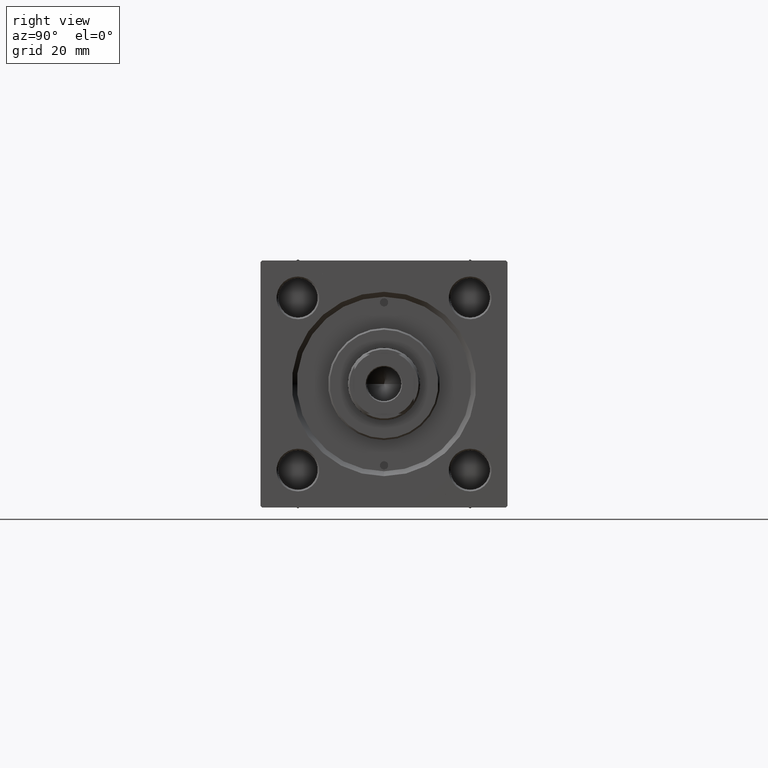
[diagram: clean part render]
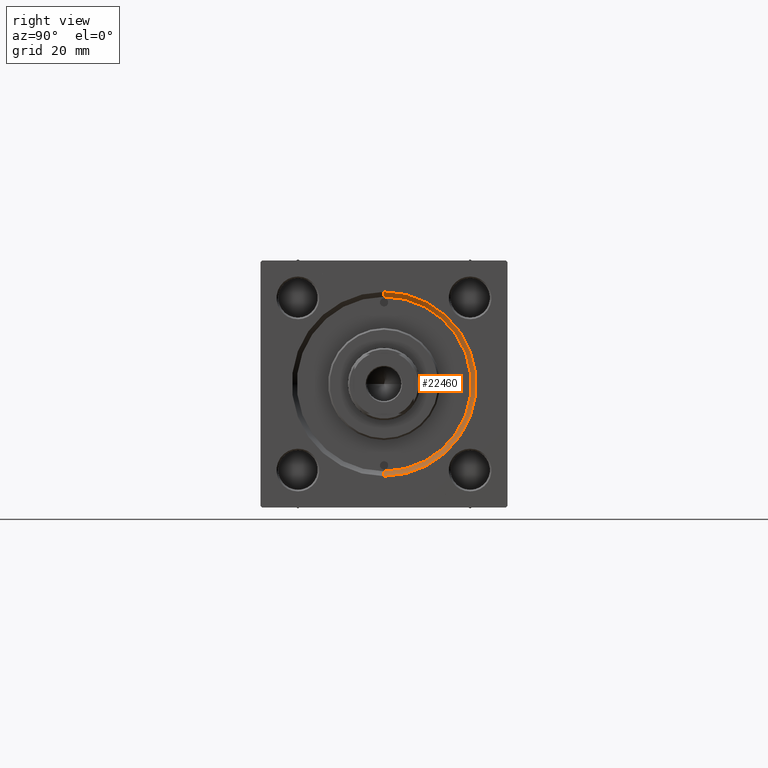
[diagram: same view with one face highlighted and labeled with its STEP entity id]
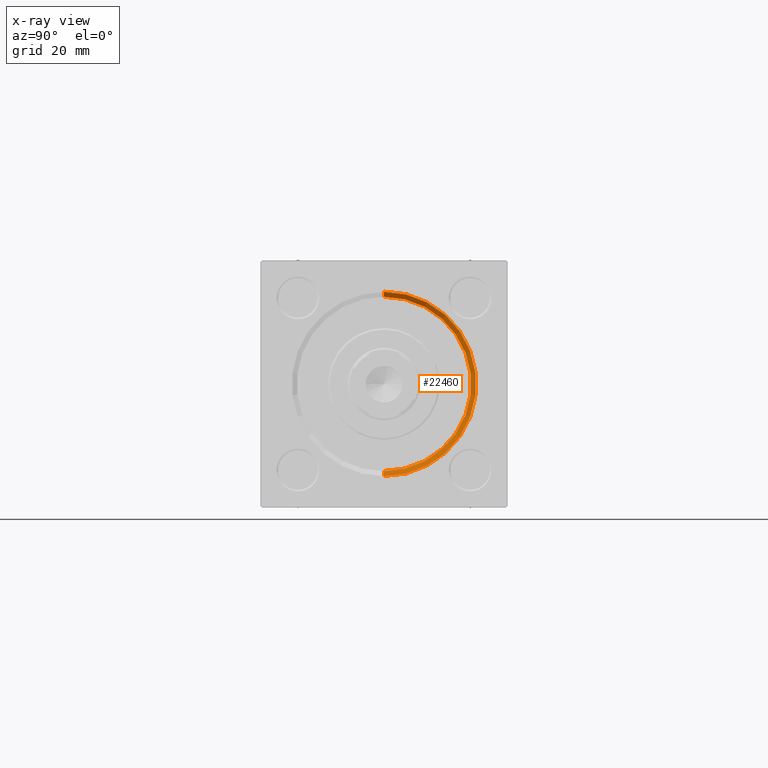
[diagram: x-ray of the same camera — body ghosted, the highlighted face saturated]
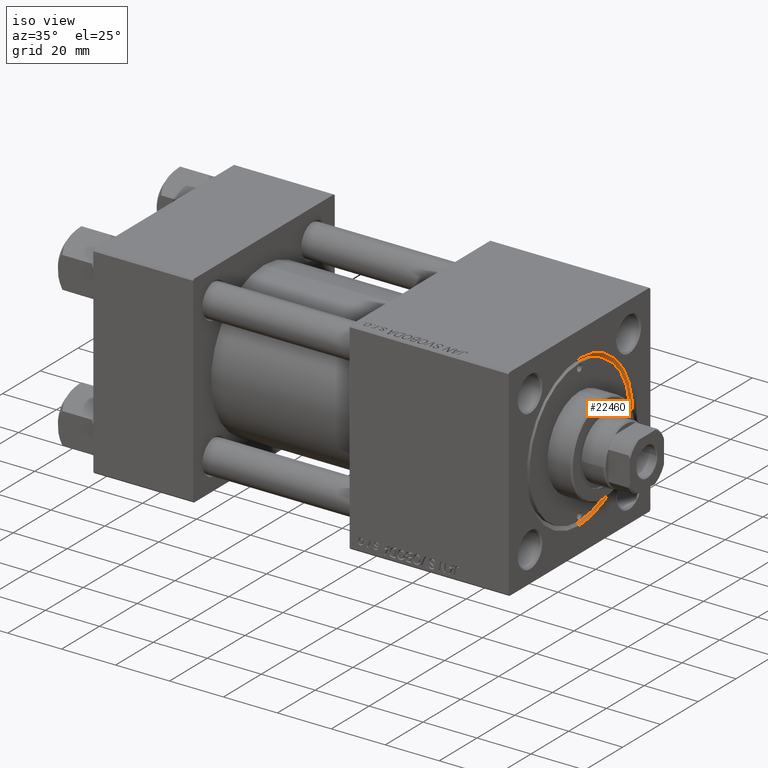
[diagram: same view with one face highlighted and labeled with its STEP entity id]
A machine part, right view. The second image highlights one B-rep face of the part: STEP entity #22460.
The next image is the same camera in x-ray: the body ghosted, the highlighted face saturated — about 0% of this face is hidden behind the body in this view.
A second angle (iso view) of the same face is appended — the face is thin or edge-on in the first view.
In plain terms, the highlighted conical surface has half-angle 45 deg.
Its self-contained STEP definition (entity closure, byte-faithful):
#715 = CARTESIAN_POINT ( 'NONE',  ( 154.0000000000000000, 3.429011037612588881E-15, 27.99999999999999645 ) ) ;
#1882 = CARTESIAN_POINT ( 'NONE',  ( 152.5000000000000568, 0.000000000000000000, -26.50000000000000355 ) ) ;
#2734 = AXIS2_PLACEMENT_3D ( 'NONE', #49917, #15026, #30546 ) ;
#3076 = VERTEX_POINT ( 'NONE', #715 ) ;
#3863 = CARTESIAN_POINT ( 'NONE',  ( 152.5000000000000568, 0.000000000000000000, -26.50000000000000355 ) ) ;
#6976 = DIRECTION ( 'NONE',  ( 0.000000000000000000, 0.000000000000000000, 1.000000000000000000 ) ) ;
#8693 = DIRECTION ( 'NONE',  ( 0.000000000000000000, 0.000000000000000000, -1.000000000000000000 ) ) ;
#10384 = ORIENTED_EDGE ( 'NONE', *, *, #20150, .F. ) ;
#13046 = ORIENTED_EDGE ( 'NONE', *, *, #42291, .F. ) ;
#13233 = CARTESIAN_POINT ( 'NONE',  ( 152.5000000000000568, 0.000000000000000000, 0.000000000000000000 ) ) ;
#15026 = DIRECTION ( 'NONE',  ( 1.000000000000000000, 0.000000000000000000, 0.000000000000000000 ) ) ;
#17010 = VERTEX_POINT ( 'NONE', #44435 ) ;
#19335 = EDGE_CURVE ( 'NONE', #35873, #33205, #37710, .T. ) ;
#19871 = LINE ( 'NONE', #30775, #42244 ) ;
#20150 = EDGE_CURVE ( 'NONE', #3076, #33205, #29093, .T. ) ;
#22460 = ADVANCED_FACE ( 'NONE', ( #48107 ), #30007, .F. ) ;
#22572 = CARTESIAN_POINT ( 'NONE',  ( 154.0000000000000000, 0.000000000000000000, -27.99999999999999645 ) ) ;
#27335 = ORIENTED_EDGE ( 'NONE', *, *, #19335, .T. ) ;
#29093 = CIRCLE ( 'NONE', #42090, 27.99999999999999645 ) ;
#30007 = CONICAL_SURFACE ( 'NONE', #45442, 26.50000000000000355, 0.7853981633974644883 ) ;
#30546 = DIRECTION ( 'NONE',  ( 0.000000000000000000, 0.000000000000000000, 1.000000000000000000 ) ) ;
#30775 = CARTESIAN_POINT ( 'NONE',  ( 152.5000000000000568, 3.245314017740486554E-15, 26.50000000000000355 ) ) ;
#30861 = DIRECTION ( 'NONE',  ( -1.000000000000000000, -0.000000000000000000, 0.000000000000000000 ) ) ;
#31524 = EDGE_LOOP ( 'NONE', ( #13046, #47409, #27335, #10384 ) ) ;
#33205 = VERTEX_POINT ( 'NONE', #22572 ) ;
#33596 = CIRCLE ( 'NONE', #2734, 26.50000000000000355 ) ;
#35873 = VERTEX_POINT ( 'NONE', #1882 ) ;
#36638 = EDGE_CURVE ( 'NONE', #35873, #17010, #33596, .T. ) ;
#37221 = VECTOR ( 'NONE', #38705, 1000.000000000000114 ) ;
#37710 = LINE ( 'NONE', #3863, #37221 ) ;
#38705 = DIRECTION ( 'NONE',  ( 0.7071067811865361374, 0.000000000000000000, -0.7071067811865588970 ) ) ;
#39184 = DIRECTION ( 'NONE',  ( 0.7071067811865361374, 8.659560562355073374E-17, 0.7071067811865588970 ) ) ;
#42090 = AXIS2_PLACEMENT_3D ( 'NONE', #46402, #30861, #6976 ) ;
#42244 = VECTOR ( 'NONE', #39184, 1000.000000000000114 ) ;
#42291 = EDGE_CURVE ( 'NONE', #17010, #3076, #19871, .T. ) ;
#43550 = DIRECTION ( 'NONE',  ( 1.000000000000000000, 0.000000000000000000, 0.000000000000000000 ) ) ;
#44435 = CARTESIAN_POINT ( 'NONE',  ( 152.5000000000000568, 3.245314017740486554E-15, 26.50000000000000355 ) ) ;
#45442 = AXIS2_PLACEMENT_3D ( 'NONE', #13233, #43550, #8693 ) ;
#46402 = CARTESIAN_POINT ( 'NONE',  ( 154.0000000000000000, 0.000000000000000000, 0.000000000000000000 ) ) ;
#47409 = ORIENTED_EDGE ( 'NONE', *, *, #36638, .F. ) ;
#48107 = FACE_OUTER_BOUND ( 'NONE', #31524, .T. ) ;
#49917 = CARTESIAN_POINT ( 'NONE',  ( 152.5000000000000568, 0.000000000000000000, 0.000000000000000000 ) ) ;